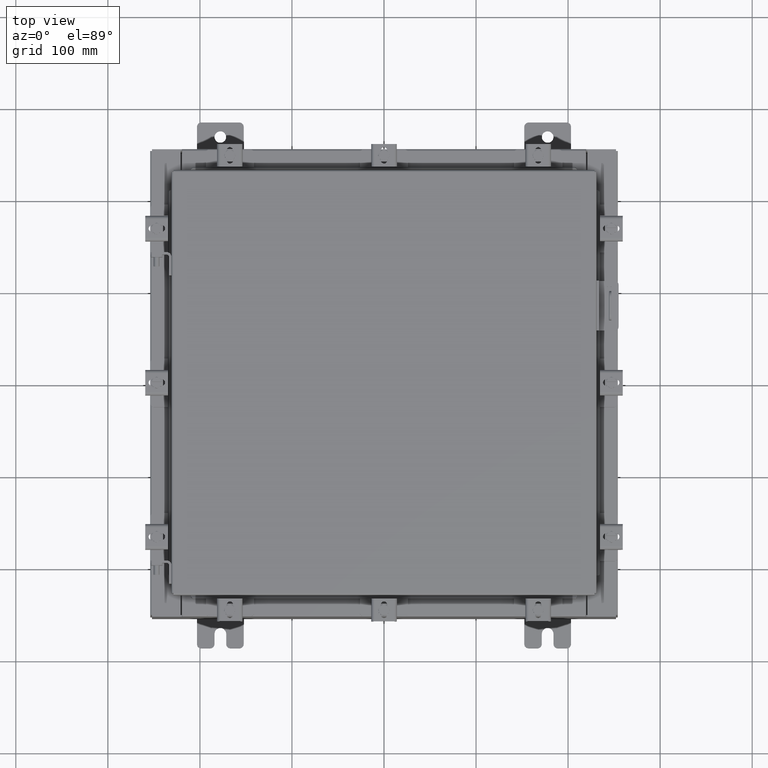
[diagram: clean part render]
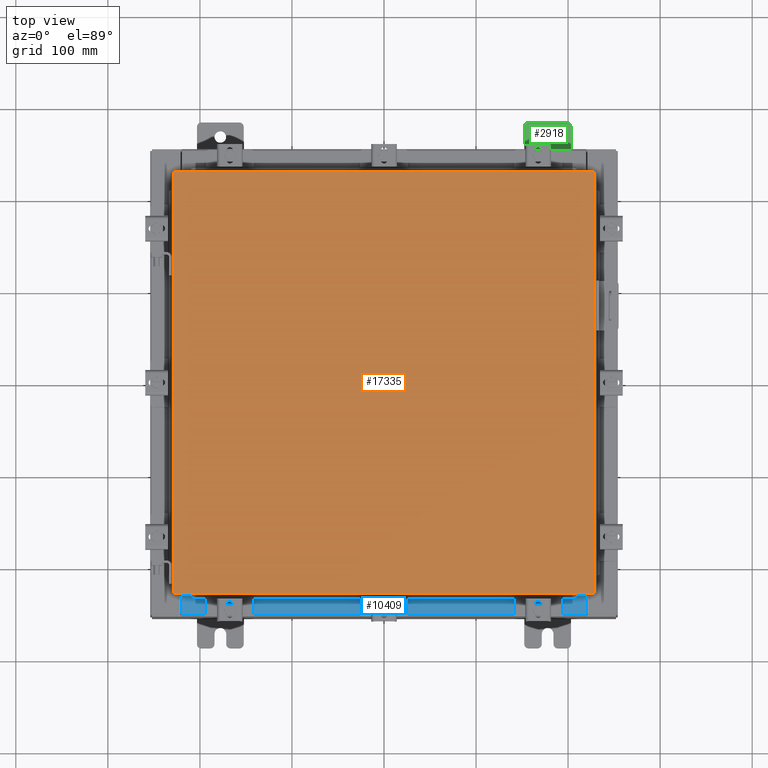
[diagram: same view with three faces highlighted in distinct colors, each labeled with its STEP entity id]
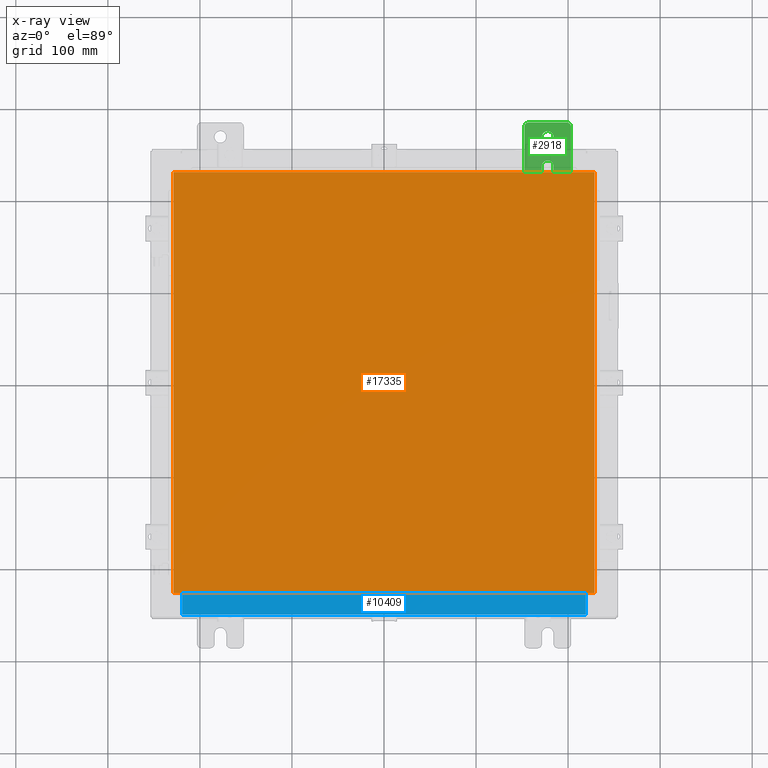
[diagram: x-ray of the same camera — body ghosted, the three highlighted faces saturated]
A machine part, top view with three faces highlighted in distinct colors.
The next image is the same camera in x-ray (body ghosted, the three faces saturated) — at least one of them is partly hidden behind the body in this view.
Their STEP definitions:

[orange] entity #17335 — the highlighted planar face has unit normal (0, 0, -1).
#139 = VECTOR ( 'NONE', #3901, 39.37007874015748100 ) ;
#1181 = DIRECTION ( 'NONE',  ( 0.0000000000000000000, 0.0000000000000000000, -1.000000000000000000 ) ) ;
#2065 = DIRECTION ( 'NONE',  ( -1.000000000000000000, -0.0000000000000000000, -0.0000000000000000000 ) ) ;
#2337 = LINE ( 'NONE', #15899, #15767 ) ;
#3894 = EDGE_LOOP ( 'NONE', ( #14607, #18832, #6162, #13114 ) ) ;
#3901 = DIRECTION ( 'NONE',  ( 0.0000000000000000000, -1.000000000000000000, 0.0000000000000000000 ) ) ;
#4513 = VERTEX_POINT ( 'NONE', #7886 ) ;
#4715 = CARTESIAN_POINT ( 'NONE',  ( 9.006300000000001300, -9.006299999999999500, 0.0000000000000000000 ) ) ;
#5669 = DIRECTION ( 'NONE',  ( 1.000000000000000000, -0.0000000000000000000, -0.0000000000000000000 ) ) ;
#5964 = AXIS2_PLACEMENT_3D ( 'NONE', #11639, #1181, #13455 ) ;
#6162 = ORIENTED_EDGE ( 'NONE', *, *, #10396, .T. ) ;
#7886 = CARTESIAN_POINT ( 'NONE',  ( -9.006299999999997800, -9.006299999999999500, 0.0000000000000000000 ) ) ;
#8973 = CARTESIAN_POINT ( 'NONE',  ( 9.006300000000001300, 9.006299999999999500, 0.0000000000000000000 ) ) ;
#9006 = CARTESIAN_POINT ( 'NONE',  ( 9.006300000000001300, 9.006299999999999500, 0.0000000000000000000 ) ) ;
#9064 = FACE_OUTER_BOUND ( 'NONE', #3894, .T. ) ;
#9425 = LINE ( 'NONE', #21356, #139 ) ;
#10396 = EDGE_CURVE ( 'NONE', #17503, #15823, #22220, .T. ) ;
#10919 = EDGE_CURVE ( 'NONE', #13820, #17503, #2337, .T. ) ;
#11007 = EDGE_CURVE ( 'NONE', #15823, #4513, #9425, .T. ) ;
#11226 = VECTOR ( 'NONE', #5669, 39.37007874015748100 ) ;
#11308 = CARTESIAN_POINT ( 'NONE',  ( -9.006299999999997800, 9.006299999999999500, -1.092739197465705300E-015 ) ) ;
#11639 = CARTESIAN_POINT ( 'NONE',  ( 0.0000000000000000000, 0.0000000000000000000, 0.0000000000000000000 ) ) ;
#12355 = DIRECTION ( 'NONE',  ( 0.0000000000000000000, 1.000000000000000000, 0.0000000000000000000 ) ) ;
#12443 = VECTOR ( 'NONE', #2065, 39.37007874015748100 ) ;
#13114 = ORIENTED_EDGE ( 'NONE', *, *, #11007, .T. ) ;
#13346 = EDGE_CURVE ( 'NONE', #4513, #13820, #20532, .T. ) ;
#13455 = DIRECTION ( 'NONE',  ( -1.000000000000000000, 0.0000000000000000000, -0.0000000000000000000 ) ) ;
#13820 = VERTEX_POINT ( 'NONE', #4715 ) ;
#14434 = CARTESIAN_POINT ( 'NONE',  ( -9.006299999999997800, -9.006299999999999500, 0.0000000000000000000 ) ) ;
#14607 = ORIENTED_EDGE ( 'NONE', *, *, #13346, .T. ) ;
#15767 = VECTOR ( 'NONE', #12355, 39.37007874015748100 ) ;
#15823 = VERTEX_POINT ( 'NONE', #11308 ) ;
#15899 = CARTESIAN_POINT ( 'NONE',  ( 9.006300000000001300, -9.006299999999999500, 0.0000000000000000000 ) ) ;
#17335 = ADVANCED_FACE ( 'NONE', ( #9064 ), #18636, .F. ) ;
#17503 = VERTEX_POINT ( 'NONE', #8973 ) ;
#18636 = PLANE ( 'NONE',  #5964 ) ;
#18832 = ORIENTED_EDGE ( 'NONE', *, *, #10919, .T. ) ;
#20532 = LINE ( 'NONE', #14434, #11226 ) ;
#21356 = CARTESIAN_POINT ( 'NONE',  ( -9.006299999999997800, 9.006299999999999500, -1.092739197465705300E-015 ) ) ;
#22220 = LINE ( 'NONE', #9006, #12443 ) ;

[blue] entity #10409 — the highlighted planar face has unit normal (-0, -0, 1).
#1286 = VERTEX_POINT ( 'NONE', #17018 ) ;
#2382 = LINE ( 'NONE', #17611, #6432 ) ;
#3724 = DIRECTION ( 'NONE',  ( -0.0000000000000000000, 1.000000000000000000, -3.566381192773190000E-015 ) ) ;
#5075 = EDGE_CURVE ( 'NONE', #1286, #17473, #10942, .T. ) ;
#5277 = CARTESIAN_POINT ( 'NONE',  ( -8.637200000000000000, -0.08770000000000000000, 3.000000000000000900 ) ) ;
#5527 = PLANE ( 'NONE',  #18597 ) ;
#5533 = ORIENTED_EDGE ( 'NONE', *, *, #15382, .F. ) ;
#5687 = EDGE_CURVE ( 'NONE', #15082, #10217, #2382, .T. ) ;
#6432 = VECTOR ( 'NONE', #19362, 39.37007874015748100 ) ;
#6688 = EDGE_LOOP ( 'NONE', ( #12094, #7033, #5533, #10030 ) ) ;
#7033 = ORIENTED_EDGE ( 'NONE', *, *, #5687, .F. ) ;
#9073 = CARTESIAN_POINT ( 'NONE',  ( 0.0000000000000000000, 1.069354855923099900E-014, 3.000000000000000900 ) ) ;
#9833 = VECTOR ( 'NONE', #12654, 39.37007874015748100 ) ;
#10030 = ORIENTED_EDGE ( 'NONE', *, *, #5075, .T. ) ;
#10217 = VERTEX_POINT ( 'NONE', #15557 ) ;
#10409 = ADVANCED_FACE ( 'NONE', ( #16565 ), #5527, .T. ) ;
#10825 = DIRECTION ( 'NONE',  ( 0.0000000000000000000, -1.000000000000000000, 3.566381192773190000E-015 ) ) ;
#10929 = VECTOR ( 'NONE', #3724, 39.37007874015748100 ) ;
#10942 = LINE ( 'NONE', #12589, #9833 ) ;
#11399 = LINE ( 'NONE', #15435, #15003 ) ;
#12094 = ORIENTED_EDGE ( 'NONE', *, *, #19614, .F. ) ;
#12589 = CARTESIAN_POINT ( 'NONE',  ( -2.773851121247453900E-018, -0.08770000000000000000, 3.000000000000001300 ) ) ;
#12654 = DIRECTION ( 'NONE',  ( -1.000000000000000000, 3.162886113166609200E-017, -1.128005754888089100E-031 ) ) ;
#14251 = CARTESIAN_POINT ( 'NONE',  ( -8.637200000000000000, -0.07469999999999973900, 3.000000000000000900 ) ) ;
#15003 = VECTOR ( 'NONE', #18931, 39.37007874015748100 ) ;
#15082 = VERTEX_POINT ( 'NONE', #18627 ) ;
#15382 = EDGE_CURVE ( 'NONE', #1286, #15082, #11399, .T. ) ;
#15435 = CARTESIAN_POINT ( 'NONE',  ( 8.637200000000000000, -1.300299999999999800, 3.000000000000005300 ) ) ;
#15557 = CARTESIAN_POINT ( 'NONE',  ( -8.637200000000000000, -1.287299999999999200, 3.000000000000005300 ) ) ;
#15634 = LINE ( 'NONE', #14251, #10929 ) ;
#16565 = FACE_OUTER_BOUND ( 'NONE', #6688, .T. ) ;
#17018 = CARTESIAN_POINT ( 'NONE',  ( 8.637200000000000000, -0.08769999999999965300, 3.000000000000000900 ) ) ;
#17473 = VERTEX_POINT ( 'NONE', #5277 ) ;
#17611 = CARTESIAN_POINT ( 'NONE',  ( 8.637200000000000000, -1.287299999999999900, 3.000000000000005300 ) ) ;
#18597 = AXIS2_PLACEMENT_3D ( 'NONE', #9073, #21310, #10825 ) ;
#18627 = CARTESIAN_POINT ( 'NONE',  ( 8.637200000000000000, -1.287299999999999900, 3.000000000000005300 ) ) ;
#18931 = DIRECTION ( 'NONE',  ( -0.0000000000000000000, -1.000000000000000000, 3.566381192773190000E-015 ) ) ;
#19362 = DIRECTION ( 'NONE',  ( -1.000000000000000000, 0.0000000000000000000, 0.0000000000000000000 ) ) ;
#19614 = EDGE_CURVE ( 'NONE', #10217, #17473, #15634, .T. ) ;
#21310 = DIRECTION ( 'NONE',  ( 0.0000000000000000000, 3.566381192773190000E-015, 1.000000000000000000 ) ) ;

[green] entity #2918 — the highlighted planar face has unit normal (0, 0, 1).
#451 = CARTESIAN_POINT ( 'NONE',  ( 0.0000000000000000000, 1.249999999999997300, 0.8099999999999935000 ) ) ;
#1127 = VECTOR ( 'NONE', #10488, 39.37007874015748100 ) ;
#1208 = EDGE_LOOP ( 'NONE', ( #20107, #20961, #15603, #16008, #8266, #7163, #8655, #14106, #22555, #16722, #4237, #18071, #3355, #17753 ) ) ;
#1468 = ORIENTED_EDGE ( 'NONE', *, *, #3152, .F. ) ;
#1748 = CARTESIAN_POINT ( 'NONE',  ( 4.168508244714285900E-016, 0.6249999999999992200, 0.2499999999999999200 ) ) ;
#2914 = CARTESIAN_POINT ( 'NONE',  ( 0.0000000000000000000, -0.6249999999999992200, 0.2500000000000005000 ) ) ;
#2918 = ADVANCED_FACE ( 'NONE', ( #12974, #12406 ), #13241, .T. ) ;
#3152 = EDGE_CURVE ( 'NONE', #7771, #20359, #21923, .T. ) ;
#3219 = VECTOR ( 'NONE', #19163, 39.37007874015748100 ) ;
#3355 = ORIENTED_EDGE ( 'NONE', *, *, #13285, .T. ) ;
#3555 = VECTOR ( 'NONE', #17801, 39.37007874015748100 ) ;
#3557 = DIRECTION ( 'NONE',  ( 1.000000000000000000, 0.0000000000000000000, -0.0000000000000000000 ) ) ;
#3576 = AXIS2_PLACEMENT_3D ( 'NONE', #14483, #3955, #16238 ) ;
#3923 = DIRECTION ( 'NONE',  ( 1.000000000000000000, 0.0000000000000000000, -0.0000000000000000000 ) ) ;
#3955 = DIRECTION ( 'NONE',  ( -1.000000000000000000, 6.523827964459549700E-016, 5.163192708025532000E-017 ) ) ;
#4237 = ORIENTED_EDGE ( 'NONE', *, *, #11661, .T. ) ;
#4311 = DIRECTION ( 'NONE',  ( 1.000000000000000000, 0.0000000000000000000, -0.0000000000000000000 ) ) ;
#4682 = DIRECTION ( 'NONE',  ( 1.000000000000000000, 0.0000000000000000000, -0.0000000000000000000 ) ) ;
#4687 = CARTESIAN_POINT ( 'NONE',  ( 0.0000000000000000000, -1.250000000000005600, -1.000000000000006200 ) ) ;
#4692 = VECTOR ( 'NONE', #18592, 39.37007874015748100 ) ;
#4707 = CARTESIAN_POINT ( 'NONE',  ( 4.039428427013647300E-016, 0.6249999999999992200, -9.783840404509077400E-018 ) ) ;
#4709 = VECTOR ( 'NONE', #18839, 39.37007874015748100 ) ;
#4980 = VERTEX_POINT ( 'NONE', #8971 ) ;
#5174 = CARTESIAN_POINT ( 'NONE',  ( 4.780733988912460100E-016, -0.6249999999999993300, -0.2499999999999998600 ) ) ;
#5529 = CIRCLE ( 'NONE', #22427, 0.1900000000000011100 ) ;
#5531 = VERTEX_POINT ( 'NONE', #6700 ) ;
#5536 = LINE ( 'NONE', #4687, #18984 ) ;
#5853 = VERTEX_POINT ( 'NONE', #9241 ) ;
#6370 = VERTEX_POINT ( 'NONE', #12218 ) ;
#6449 = DIRECTION ( 'NONE',  ( -5.163192708025533800E-017, 0.0000000000000000000, -1.000000000000000000 ) ) ;
#6554 = CARTESIAN_POINT ( 'NONE',  ( 6.829619984160658000E-017, -1.250000000000003800, 0.2500000000000005000 ) ) ;
#6700 = CARTESIAN_POINT ( 'NONE',  ( 0.0000000000000000000, 1.249999999999994700, -0.8100000000000092700 ) ) ;
#6960 = AXIS2_PLACEMENT_3D ( 'NONE', #14840, #4311, #16584 ) ;
#7137 = DIRECTION ( 'NONE',  ( 1.000000000000000000, 0.0000000000000000000, -0.0000000000000000000 ) ) ;
#7163 = ORIENTED_EDGE ( 'NONE', *, *, #8446, .T. ) ;
#7451 = CIRCLE ( 'NONE', #9155, 0.1900000000000011400 ) ;
#7526 = EDGE_CURVE ( 'NONE', #20359, #7771, #8845, .T. ) ;
#7532 = EDGE_LOOP ( 'NONE', ( #11479, #1468 ) ) ;
#7741 = CARTESIAN_POINT ( 'NONE',  ( 4.039428427013647300E-016, 0.6249999999999992200, -9.783840404509077400E-018 ) ) ;
#7771 = VERTEX_POINT ( 'NONE', #1748 ) ;
#7841 = EDGE_CURVE ( 'NONE', #4980, #6370, #5529, .T. ) ;
#7902 = DIRECTION ( 'NONE',  ( 1.000000000000000000, -0.0000000000000000000, -5.163192708025532000E-017 ) ) ;
#7989 = DIRECTION ( 'NONE',  ( -5.163192708025533800E-017, 0.0000000000000000000, -1.000000000000000000 ) ) ;
#8003 = EDGE_CURVE ( 'NONE', #10719, #19711, #7451, .T. ) ;
#8086 = CARTESIAN_POINT ( 'NONE',  ( 4.780733988912460100E-016, -0.6249999999999993300, -0.2499999999999993900 ) ) ;
#8142 = EDGE_CURVE ( 'NONE', #19711, #13677, #8822, .T. ) ;
#8228 = LINE ( 'NONE', #14286, #3555 ) ;
#8266 = ORIENTED_EDGE ( 'NONE', *, *, #8142, .T. ) ;
#8289 = CARTESIAN_POINT ( 'NONE',  ( 0.0000000000000000000, -1.250000000000002200, 0.9999999999999992200 ) ) ;
#8446 = EDGE_CURVE ( 'NONE', #13677, #13970, #21915, .T. ) ;
#8655 = ORIENTED_EDGE ( 'NONE', *, *, #8712, .T. ) ;
#8712 = EDGE_CURVE ( 'NONE', #13970, #20669, #14038, .T. ) ;
#8748 = CARTESIAN_POINT ( 'NONE',  ( 0.0000000000000000000, 1.249999999999997600, 0.9999999999999951200 ) ) ;
#8822 = LINE ( 'NONE', #6554, #4709 ) ;
#8845 = CIRCLE ( 'NONE', #11602, 0.2499999999999999200 ) ;
#8853 = VERTEX_POINT ( 'NONE', #17214 ) ;
#8971 = CARTESIAN_POINT ( 'NONE',  ( 0.0000000000000000000, -1.060000000000001200, 0.9999999999999988900 ) ) ;
#9155 = AXIS2_PLACEMENT_3D ( 'NONE', #19788, #9294, #21517 ) ;
#9176 = EDGE_CURVE ( 'NONE', #5853, #8853, #17706, .T. ) ;
#9241 = CARTESIAN_POINT ( 'NONE',  ( 0.0000000000000000000, -1.250000000000005300, -0.8100000000000047200 ) ) ;
#9294 = DIRECTION ( 'NONE',  ( 1.000000000000000000, 0.0000000000000000000, -0.0000000000000000000 ) ) ;
#9345 = EDGE_CURVE ( 'NONE', #20669, #17385, #15526, .T. ) ;
#9600 = EDGE_CURVE ( 'NONE', #13050, #5531, #22526, .T. ) ;
#9606 = AXIS2_PLACEMENT_3D ( 'NONE', #7741, #7902, #7989 ) ;
#9872 = DIRECTION ( 'NONE',  ( 0.0000000000000000000, 1.000000000000000000, -1.639108796198558100E-015 ) ) ;
#10156 = VERTEX_POINT ( 'NONE', #20547 ) ;
#10322 = EDGE_CURVE ( 'NONE', #10455, #10156, #19848, .T. ) ;
#10344 = AXIS2_PLACEMENT_3D ( 'NONE', #14083, #3557, #15852 ) ;
#10455 = VERTEX_POINT ( 'NONE', #451 ) ;
#10488 = DIRECTION ( 'NONE',  ( 0.0000000000000000000, -1.000000000000000000, 1.639108796198558100E-015 ) ) ;
#10719 = VERTEX_POINT ( 'NONE', #13398 ) ;
#11479 = ORIENTED_EDGE ( 'NONE', *, *, #7526, .F. ) ;
#11602 = AXIS2_PLACEMENT_3D ( 'NONE', #4707, #16985, #6449 ) ;
#11661 = EDGE_CURVE ( 'NONE', #8853, #13050, #5536, .T. ) ;
#11690 = EDGE_CURVE ( 'NONE', #6370, #10719, #13793, .T. ) ;
#12218 = CARTESIAN_POINT ( 'NONE',  ( 0.0000000000000000000, -1.250000000000002400, 0.8099999999999980500 ) ) ;
#12406 = FACE_OUTER_BOUND ( 'NONE', #1208, .T. ) ;
#12974 = FACE_BOUND ( 'NONE', #7532, .T. ) ;
#12996 = CARTESIAN_POINT ( 'NONE',  ( 0.0000000000000000000, 0.0000000000000000000, 0.0000000000000000000 ) ) ;
#13050 = VERTEX_POINT ( 'NONE', #20674 ) ;
#13185 = EDGE_CURVE ( 'NONE', #10156, #4980, #15113, .T. ) ;
#13241 = PLANE ( 'NONE',  #13603 ) ;
#13267 = VECTOR ( 'NONE', #15374, 39.37007874015748100 ) ;
#13285 = EDGE_CURVE ( 'NONE', #5531, #10455, #8228, .T. ) ;
#13398 = CARTESIAN_POINT ( 'NONE',  ( 0.0000000000000000000, -1.250000000000003100, 0.4400000000000020000 ) ) ;
#13603 = AXIS2_PLACEMENT_3D ( 'NONE', #12996, #14052, #14444 ) ;
#13677 = VERTEX_POINT ( 'NONE', #2914 ) ;
#13793 = LINE ( 'NONE', #8289, #13267 ) ;
#13970 = VERTEX_POINT ( 'NONE', #5174 ) ;
#13991 = CARTESIAN_POINT ( 'NONE',  ( 3.910348609313009100E-016, 0.6249999999999992200, -0.2499999999999999200 ) ) ;
#14038 = LINE ( 'NONE', #8086, #4692 ) ;
#14052 = DIRECTION ( 'NONE',  ( 1.000000000000000000, 0.0000000000000000000, -0.0000000000000000000 ) ) ;
#14083 = CARTESIAN_POINT ( 'NONE',  ( 0.0000000000000000000, 1.059999999999996300, 0.8099999999999938400 ) ) ;
#14106 = ORIENTED_EDGE ( 'NONE', *, *, #9345, .T. ) ;
#14286 = CARTESIAN_POINT ( 'NONE',  ( 0.0000000000000000000, 1.249999999999994200, -1.000000000000010400 ) ) ;
#14444 = DIRECTION ( 'NONE',  ( -0.0000000000000000000, 0.0000000000000000000, -1.000000000000000000 ) ) ;
#14456 = CARTESIAN_POINT ( 'NONE',  ( 0.0000000000000000000, -1.060000000000004100, -0.8100000000000050500 ) ) ;
#14483 = CARTESIAN_POINT ( 'NONE',  ( 4.780733988912460100E-016, -0.6249999999999993300, 5.858939755051854500E-017 ) ) ;
#14489 = AXIS2_PLACEMENT_3D ( 'NONE', #14456, #3923, #16218 ) ;
#14840 = CARTESIAN_POINT ( 'NONE',  ( 0.0000000000000000000, -1.060000000000003400, -0.4400000000000005000 ) ) ;
#15113 = LINE ( 'NONE', #8748, #1127 ) ;
#15207 = CARTESIAN_POINT ( 'NONE',  ( 0.0000000000000000000, 1.059999999999993600, -0.8100000000000089400 ) ) ;
#15284 = CARTESIAN_POINT ( 'NONE',  ( 0.0000000000000000000, -1.250000000000004700, -0.4400000000000002200 ) ) ;
#15374 = DIRECTION ( 'NONE',  ( 0.0000000000000000000, -1.639108796198553600E-015, -1.000000000000000000 ) ) ;
#15526 = CIRCLE ( 'NONE', #6960, 0.1900000000000011100 ) ;
#15603 = ORIENTED_EDGE ( 'NONE', *, *, #11690, .T. ) ;
#15731 = CARTESIAN_POINT ( 'NONE',  ( 0.0000000000000000000, -1.250000000000002200, 0.9999999999999992200 ) ) ;
#15852 = DIRECTION ( 'NONE',  ( 0.0000000000000000000, 0.0000000000000000000, -1.000000000000000000 ) ) ;
#16008 = ORIENTED_EDGE ( 'NONE', *, *, #8003, .T. ) ;
#16218 = DIRECTION ( 'NONE',  ( 0.0000000000000000000, 0.0000000000000000000, -1.000000000000000000 ) ) ;
#16238 = DIRECTION ( 'NONE',  ( -6.523827964459551700E-016, -1.000000000000000000, 0.0000000000000000000 ) ) ;
#16312 = CARTESIAN_POINT ( 'NONE',  ( 1.928684683526972300E-016, -1.060000000000002100, 0.2500000000000005000 ) ) ;
#16584 = DIRECTION ( 'NONE',  ( 0.0000000000000000000, 0.0000000000000000000, -1.000000000000000000 ) ) ;
#16722 = ORIENTED_EDGE ( 'NONE', *, *, #9176, .T. ) ;
#16964 = DIRECTION ( 'NONE',  ( 0.0000000000000000000, 0.0000000000000000000, -1.000000000000000000 ) ) ;
#16985 = DIRECTION ( 'NONE',  ( 1.000000000000000000, -0.0000000000000000000, -5.163192708025532000E-017 ) ) ;
#17214 = CARTESIAN_POINT ( 'NONE',  ( 0.0000000000000000000, -1.060000000000004500, -1.000000000000006400 ) ) ;
#17385 = VERTEX_POINT ( 'NONE', #15284 ) ;
#17660 = CARTESIAN_POINT ( 'NONE',  ( 0.0000000000000000000, -1.060000000000001600, 0.8099999999999978300 ) ) ;
#17706 = CIRCLE ( 'NONE', #14489, 0.1900000000000011100 ) ;
#17753 = ORIENTED_EDGE ( 'NONE', *, *, #10322, .T. ) ;
#17801 = DIRECTION ( 'NONE',  ( 0.0000000000000000000, 1.639108796198553600E-015, 1.000000000000000000 ) ) ;
#18071 = ORIENTED_EDGE ( 'NONE', *, *, #9600, .T. ) ;
#18592 = DIRECTION ( 'NONE',  ( -6.556435184794182400E-016, -1.000000000000000000, -1.639108796198545600E-016 ) ) ;
#18724 = AXIS2_PLACEMENT_3D ( 'NONE', #15207, #4682, #16964 ) ;
#18839 = DIRECTION ( 'NONE',  ( 6.556435184794182400E-016, 1.000000000000000000, 0.0000000000000000000 ) ) ;
#18984 = VECTOR ( 'NONE', #9872, 39.37007874015748100 ) ;
#19163 = DIRECTION ( 'NONE',  ( 0.0000000000000000000, -1.639108796198553600E-015, -1.000000000000000000 ) ) ;
#19415 = DIRECTION ( 'NONE',  ( 0.0000000000000000000, 0.0000000000000000000, -1.000000000000000000 ) ) ;
#19711 = VERTEX_POINT ( 'NONE', #16312 ) ;
#19788 = CARTESIAN_POINT ( 'NONE',  ( 0.0000000000000000000, -1.060000000000002100, 0.4400000000000016700 ) ) ;
#19848 = CIRCLE ( 'NONE', #10344, 0.1900000000000011100 ) ;
#20107 = ORIENTED_EDGE ( 'NONE', *, *, #13185, .T. ) ;
#20208 = LINE ( 'NONE', #15731, #3219 ) ;
#20301 = CARTESIAN_POINT ( 'NONE',  ( 1.928684683526964400E-016, -1.060000000000003400, -0.2499999999999994400 ) ) ;
#20359 = VERTEX_POINT ( 'NONE', #13991 ) ;
#20547 = CARTESIAN_POINT ( 'NONE',  ( 0.0000000000000000000, 1.059999999999996500, 0.9999999999999953400 ) ) ;
#20669 = VERTEX_POINT ( 'NONE', #20301 ) ;
#20674 = CARTESIAN_POINT ( 'NONE',  ( 0.0000000000000000000, 1.059999999999993400, -1.000000000000010000 ) ) ;
#20919 = EDGE_CURVE ( 'NONE', #17385, #5853, #20208, .T. ) ;
#20961 = ORIENTED_EDGE ( 'NONE', *, *, #7841, .T. ) ;
#21517 = DIRECTION ( 'NONE',  ( 0.0000000000000000000, 0.0000000000000000000, -1.000000000000000000 ) ) ;
#21915 = CIRCLE ( 'NONE', #3576, 0.2499999999999999200 ) ;
#21923 = CIRCLE ( 'NONE', #9606, 0.2499999999999999200 ) ;
#22427 = AXIS2_PLACEMENT_3D ( 'NONE', #17660, #7137, #19415 ) ;
#22526 = CIRCLE ( 'NONE', #18724, 0.1900000000000011100 ) ;
#22555 = ORIENTED_EDGE ( 'NONE', *, *, #20919, .T. ) ;